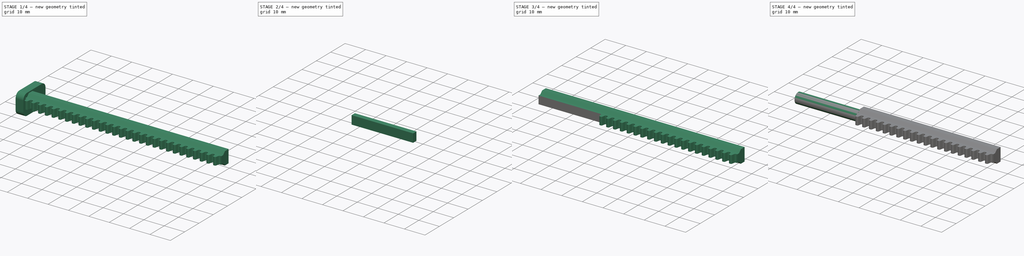
[diagram: build sequence overview — one tinted view per stage of 4, left to right]
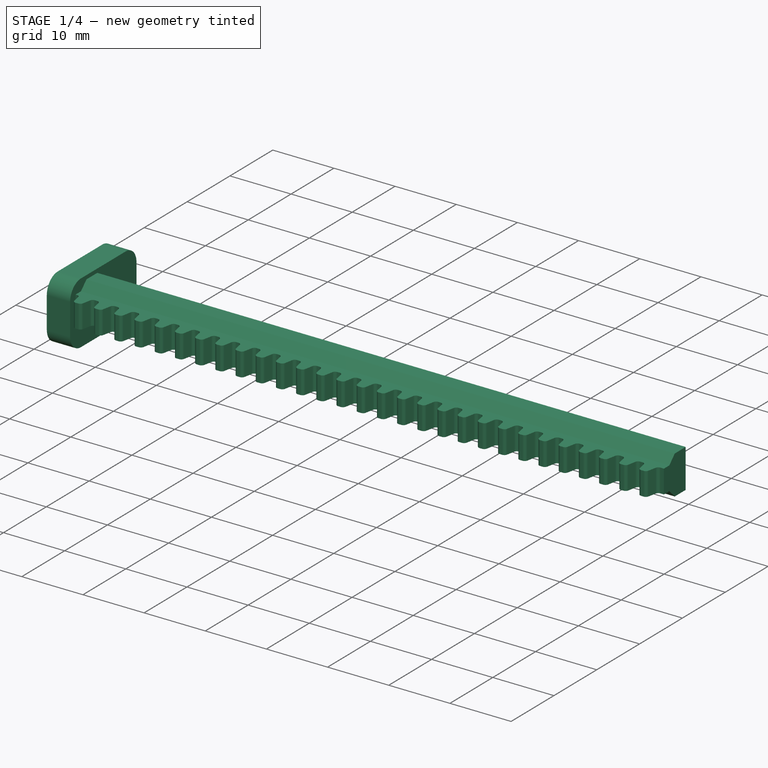
[diagram: stage 1 of 4 — iso view after this stage's code; geometry added in this stage tinted green]
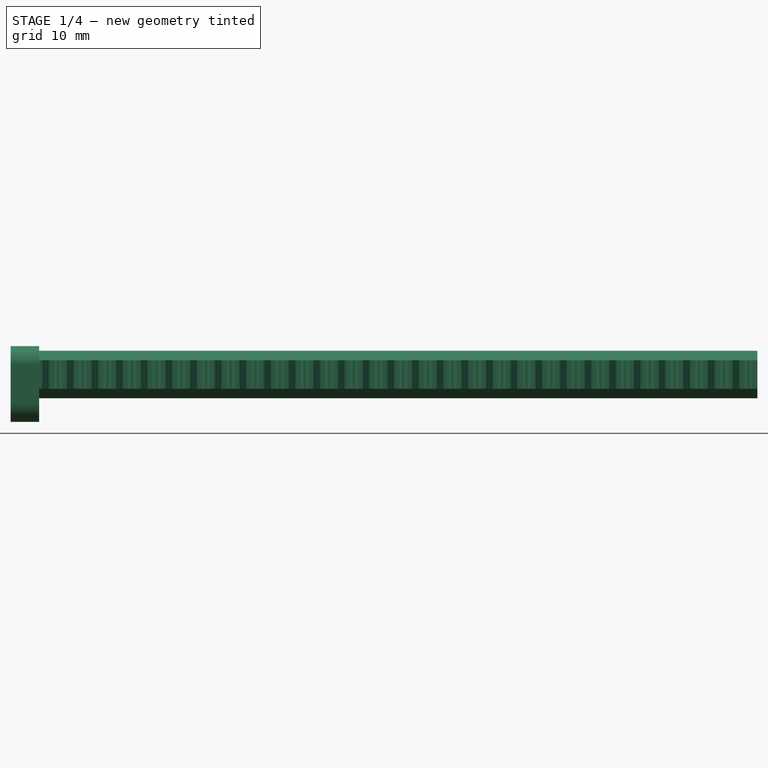
[diagram: stage 1 of 4 — front view after this stage's code; geometry added in this stage tinted green]
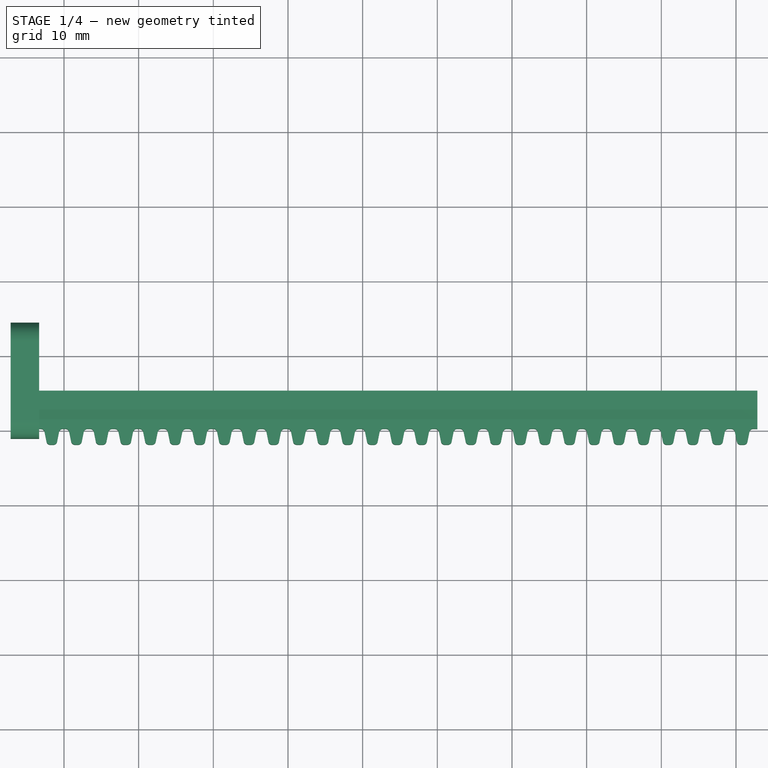
[diagram: stage 1 of 4 — top view after this stage's code; geometry added in this stage tinted green]
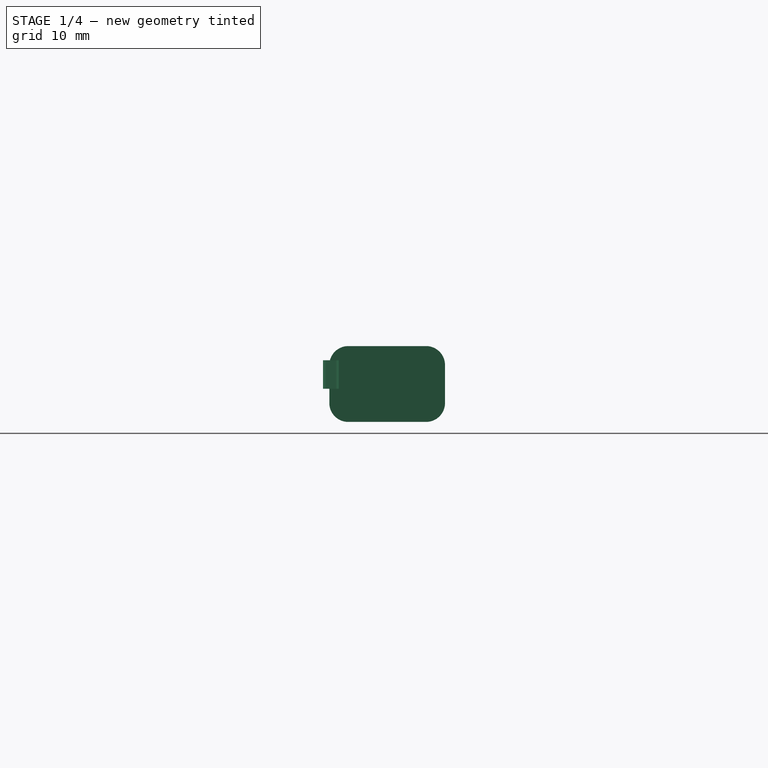
[diagram: stage 1 of 4 — right view after this stage's code; geometry added in this stage tinted green]
FCSTD DOCUMENT  (FreeCAD 0.19R24267 +99 (Git))
Label: Modified rod
License: All rights reserved
LicenseURL: http://en.wikipedia.org/wiki/All_rights_reserved
objects: PartDesign::Plane×4, PartDesign::Body×4, Part::FeaturePython×4, PartDesign::FeatureBase×3, PartDesign::ShapeBinder×3, Sketcher::SketchObject×2, Part::Face×2, App::DocumentObjectGroup×2, Part::Extrusion×2, Part::Feature×1, Part::Cut×1
note: 26 computed .brp shape members not serialized (recipe doc carries the construction recipe); baked Part::Feature solids carry a one-line shape summary decoded from their .brp

FEATURE [Part::Feature] Part__Feature  label="Rack, Servo to Linear_100mm_MINI"
  shape: bbox 100 x 16.34 x 10.16 mm, 251 faces (baked)
FEATURE [PartDesign::FeatureBase] BaseFeature
  BaseFeature = -> Part__Feature
FEATURE [PartDesign::Plane] DatumPlane
  Length = 62.8469
  MapMode = 5
  Placement = pos=(-73.33,0,0) rot=(0.57735,0.57735,0.57735;2.0944rad)
  ResizeMode = 0
  Support = -> [BaseFeature]
  Width = 60.2558
FEATURE [Sketcher::SketchObject] Sketch
  FullyConstrained = false
  MapMode = 5
  Placement = pos=(-73.33,0,0) rot=(0.57735,0.57735,0.57735;2.0944rad)
  Support = -> [DatumPlane]
  sketch-geometry (4):
    g0: LineSegment StartX=1.11304 StartY=11.164 StartZ=0 EndX=27.591 EndY=11.164 EndZ=0
    g1: LineSegment StartX=27.591 StartY=11.164 StartZ=0 EndX=27.591 EndY=-9.80515 EndZ=0
    g2: LineSegment StartX=27.591 StartY=-9.80515 StartZ=0 EndX=1.11304 EndY=-9.80515 EndZ=0
    g3: LineSegment StartX=1.11304 StartY=-9.80515 StartZ=0 EndX=1.11304 EndY=11.164 EndZ=0
  constraints (8):
    c: Coincident(g0,g1)
    c: Coincident(g1,g2)
    c: Coincident(g2,g3)
    c: Coincident(g3,g0)
    c: Horizontal(g0)
    c: Horizontal(g2)
    c: Vertical(g1)
    c: Vertical(g3)
FEATURE [Part::Face] Face
  FaceMakerClass = Part::FaceMakerBullseye
  Sources = -> [Sketch]
FEATURE [PartDesign::ShapeBinder] CopySlice_child0
  TraceSupport = false
FEATURE [PartDesign::Plane] DatumPlane001
  Length = 62.8469
  MapMode = 5
  Placement = pos=(-73.33,0,0) rot=(0.57735,-0.57735,-0.57735;2.0944rad)
  ResizeMode = 0
  Support = -> [CopySlice_child0]
  Width = 60.2558
FEATURE [PartDesign::ShapeBinder] CopySlice_child0001
  TraceSupport = false
FEATURE [PartDesign::Plane] DatumPlane002
  Length = 62.8469
  MapMode = 5
  Placement = pos=(-73.33,0,0) rot=(0.57735,-0.57735,-0.57735;2.0944rad)
  ResizeMode = 0
  Support = -> [CopySlice_child0001]
  Width = 60.2558
FEATURE [PartDesign::Body] Body
  BaseFeature = -> Part__Feature
  Group = -> [BaseFeature,DatumPlane,Sketch,DatumPlane001,CopySlice_child0,DatumPlane002,CopySlice_child0001]
  Origin = -> Origin
  Tip = -> BaseFeature
FEATURE [Part::FeaturePython] Slice  # WARN: FeaturePython — macro-defined, semantics opaque (R4)
  Base = -> Body
  Mode = 1
  Tolerance = 0
  Tools = -> [Face]
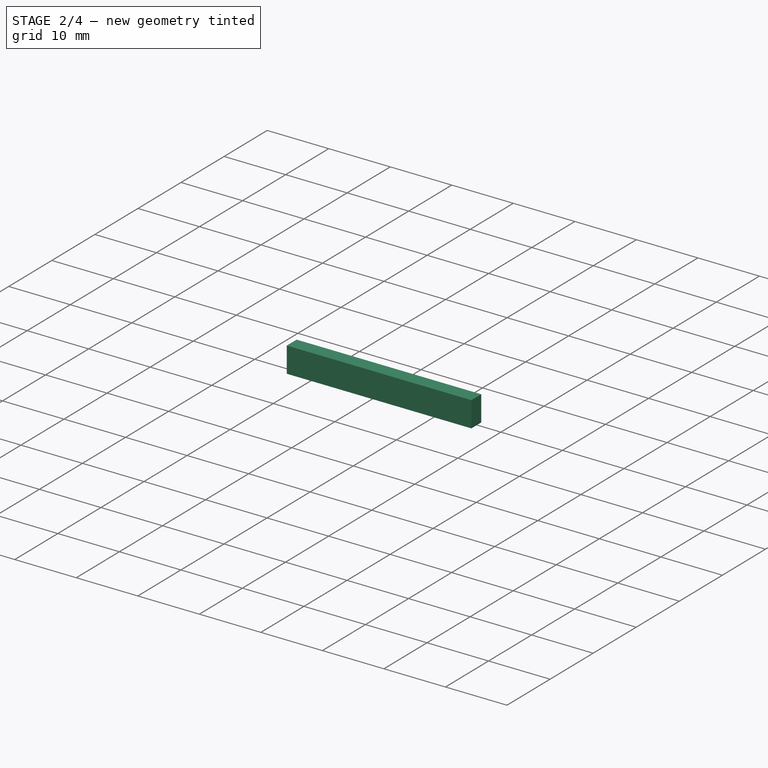
[diagram: stage 2 of 4 — iso view after this stage's code; geometry added in this stage tinted green]
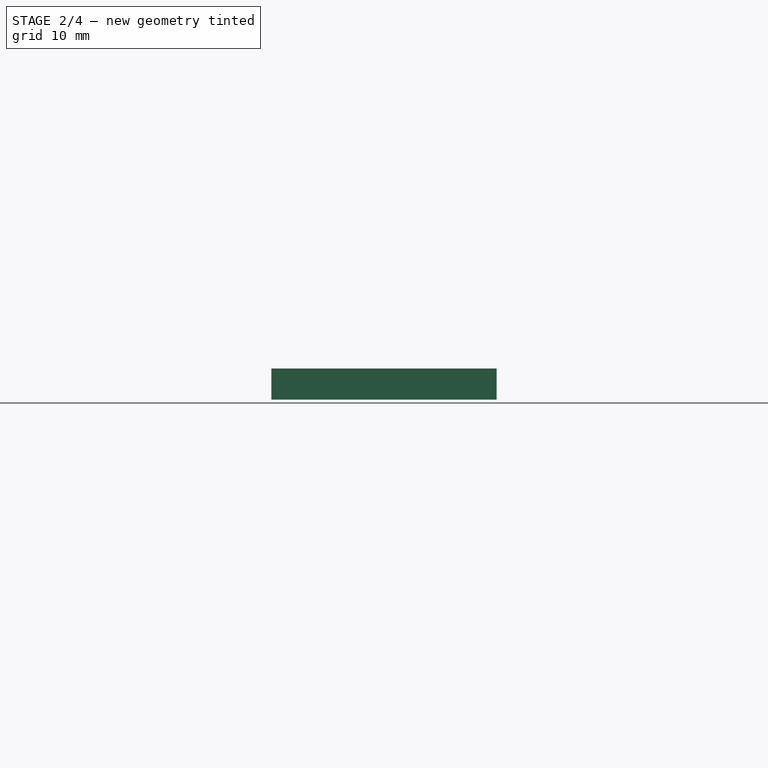
[diagram: stage 2 of 4 — front view after this stage's code; geometry added in this stage tinted green]
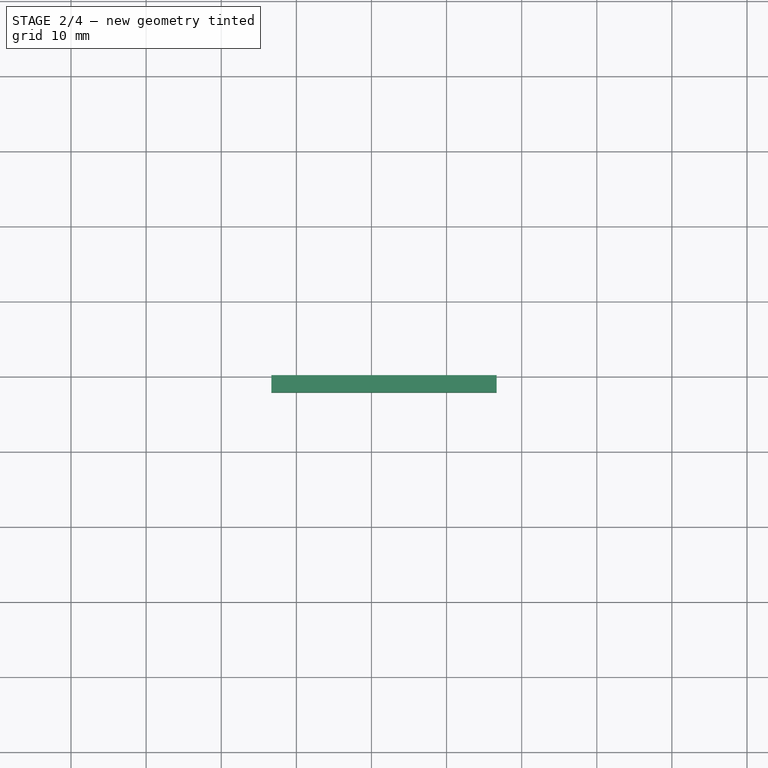
[diagram: stage 2 of 4 — top view after this stage's code; geometry added in this stage tinted green]
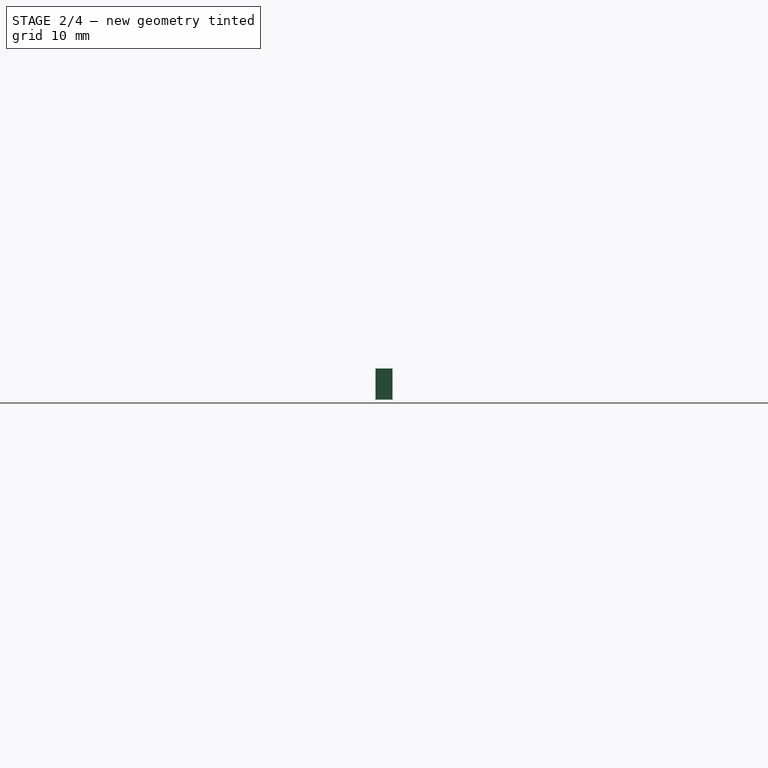
[diagram: stage 2 of 4 — right view after this stage's code; geometry added in this stage tinted green]
FEATURE [Part::FeaturePython] Slice_child0  label="Slice.0"  # WARN: FeaturePython — macro-defined, semantics opaque (R4)
  Base = -> Slice
  FilterType = 1
  Invert = false
  OverrideMaxVal = 0
  WindowFrom = 80
  WindowTo = 100
  items = 0
FEATURE [App::DocumentObjectGroup] GrExplode_Slice  label="Exploded Slice"
  Group = -> [Slice_child0]
FEATURE [PartDesign::FeatureBase] BaseFeature001
  BaseFeature = -> Slice_child0
FEATURE [PartDesign::Plane] DatumPlane003
  Length = 60
  MapMode = 5
  Placement = pos=(-73.33,0,0) rot=(0.57735,-0.57735,-0.57735;2.0944rad)
  ResizeMode = 0
  Support = -> [BaseFeature001]
  Width = 60
FEATURE [Sketcher::SketchObject] Sketch001
  FullyConstrained = false
  MapMode = 5
  Placement = pos=(-73.33,0,0) rot=(0.57735,-0.57735,-0.57735;2.0944rad)
  Support = -> [DatumPlane003]
  sketch-geometry (4):
    g0: LineSegment StartX=-10.1839 StartY=4.0095 StartZ=0 EndX=-7.90569 EndY=4.0095 EndZ=0
    g1: LineSegment StartX=-7.90569 StartY=4.0095 StartZ=0 EndX=-7.90569 EndY=-0.134405 EndZ=0
    g2: LineSegment StartX=-7.90569 StartY=-0.134405 StartZ=0 EndX=-10.1839 EndY=-0.134405 EndZ=0
    g3: LineSegment StartX=-10.1839 StartY=-0.134405 StartZ=0 EndX=-10.1839 EndY=4.0095 EndZ=0
  constraints (8):
    c: Coincident(g0,g1)
    c: Coincident(g1,g2)
    c: Coincident(g2,g3)
    c: Coincident(g3,g0)
    c: Horizontal(g0)
    c: Horizontal(g2)
    c: Vertical(g1)
    c: Vertical(g3)
FEATURE [PartDesign::Body] Body001
  BaseFeature = -> Slice_child0
  Group = -> [BaseFeature001,DatumPlane003,Sketch001]
  Origin = -> Origin001
  Tip = -> BaseFeature001
FEATURE [Part::Extrusion] Extrude
  Base = -> Sketch001
  Dir = (-1,0,0)
  DirMode = 2
  FaceMakerClass = Part::FaceMakerBullseye
  LengthFwd = 30
  LengthRev = 0
  Reversed = true
  Solid = true
  Symmetric = false
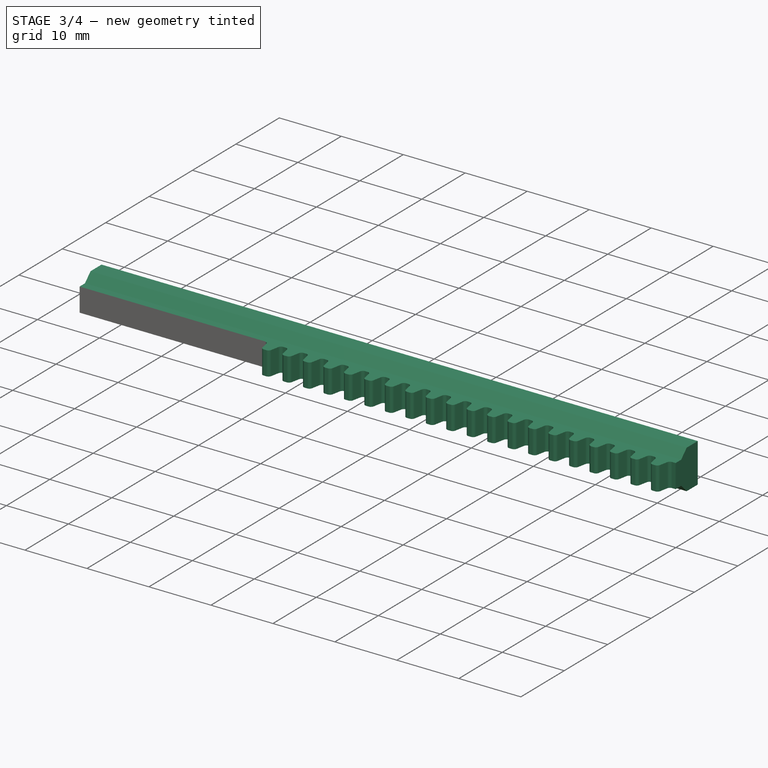
[diagram: stage 3 of 4 — iso view after this stage's code; geometry added in this stage tinted green]
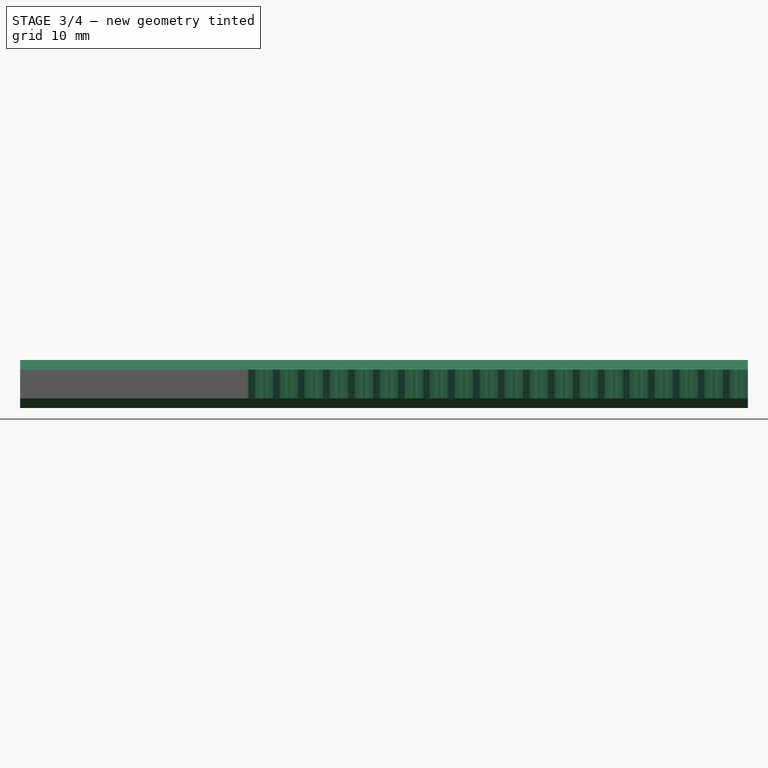
[diagram: stage 3 of 4 — front view after this stage's code; geometry added in this stage tinted green]
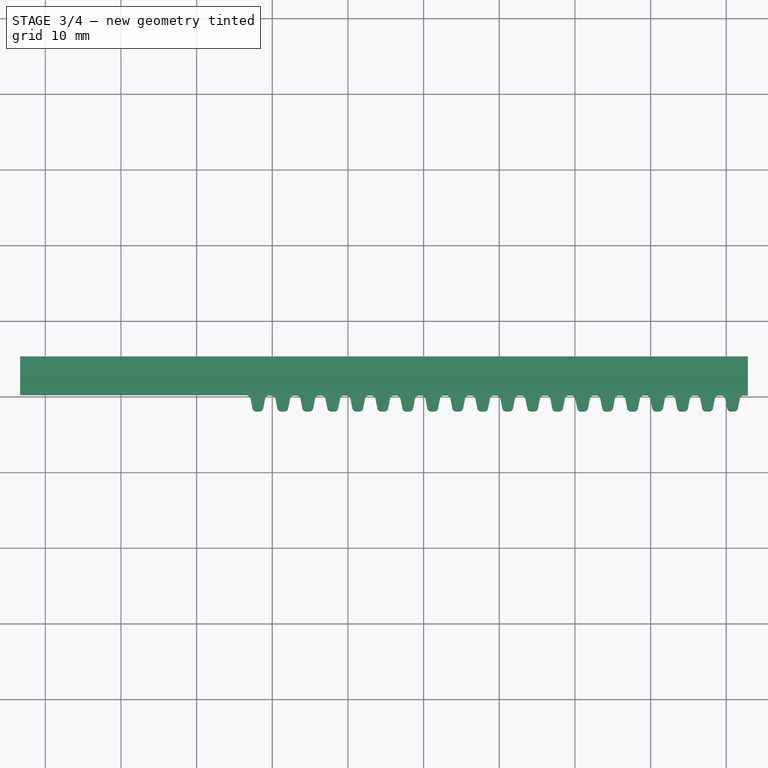
[diagram: stage 3 of 4 — top view after this stage's code; geometry added in this stage tinted green]
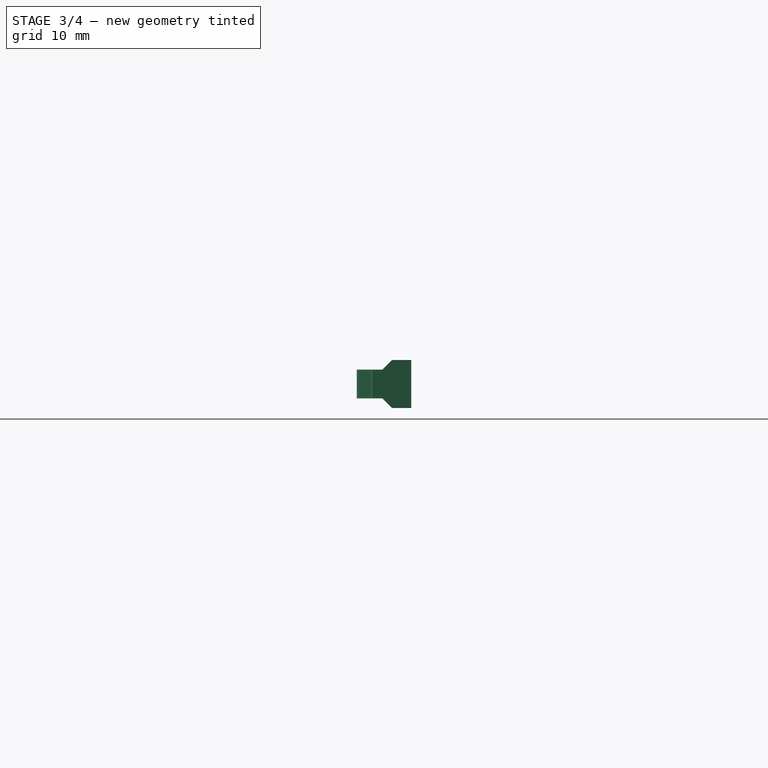
[diagram: stage 3 of 4 — right view after this stage's code; geometry added in this stage tinted green]
FEATURE [Part::Cut] Cut
  Base = -> Body001
  Tool = -> Extrude
FEATURE [PartDesign::FeatureBase] BaseFeature002
  BaseFeature = -> Cut
FEATURE [PartDesign::ShapeBinder] CopyExtrude001
  Placement = pos=(30,0,0) rot=(0,0,1;0rad)
  TraceSupport = false
FEATURE [PartDesign::Body] Body003
  Group = -> [CopyExtrude001]
  Origin = -> Origin003
FEATURE [Part::Face] Face001
  FaceMakerClass = Part::FaceMakerBullseye
FEATURE [Part::FeaturePython] Slice001  # WARN: FeaturePython — macro-defined, semantics opaque (R4)
  Base = -> Body002
  Mode = 1
  Tolerance = 0
  Tools = -> [Face001]
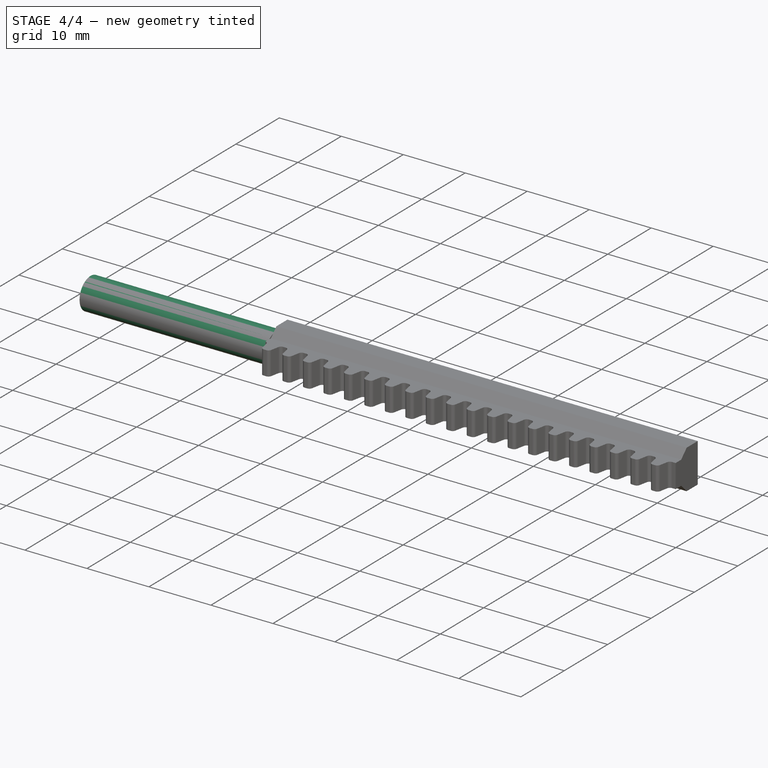
[diagram: stage 4 of 4 — iso view after this stage's code; geometry added in this stage tinted green]
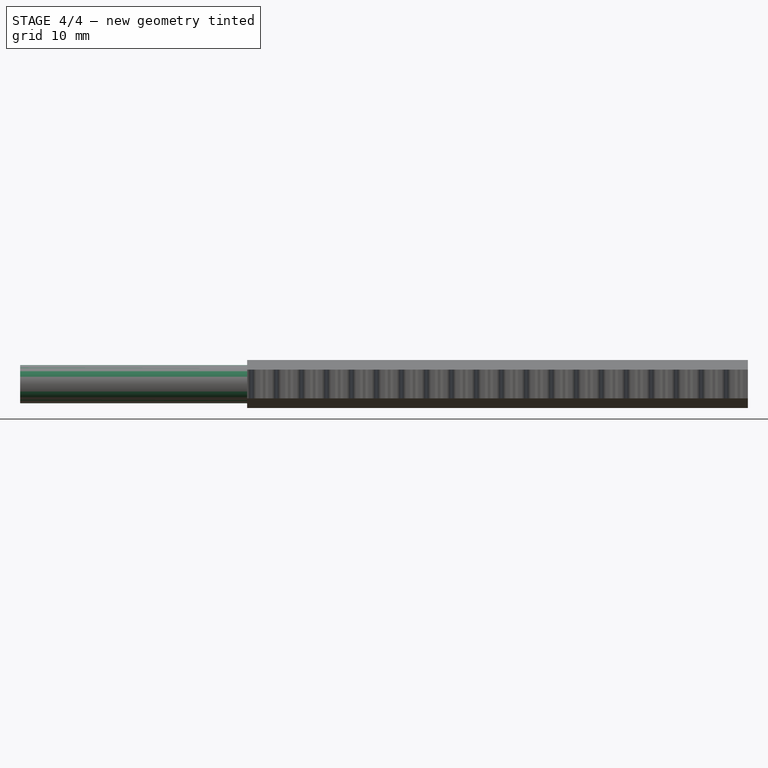
[diagram: stage 4 of 4 — front view after this stage's code; geometry added in this stage tinted green]
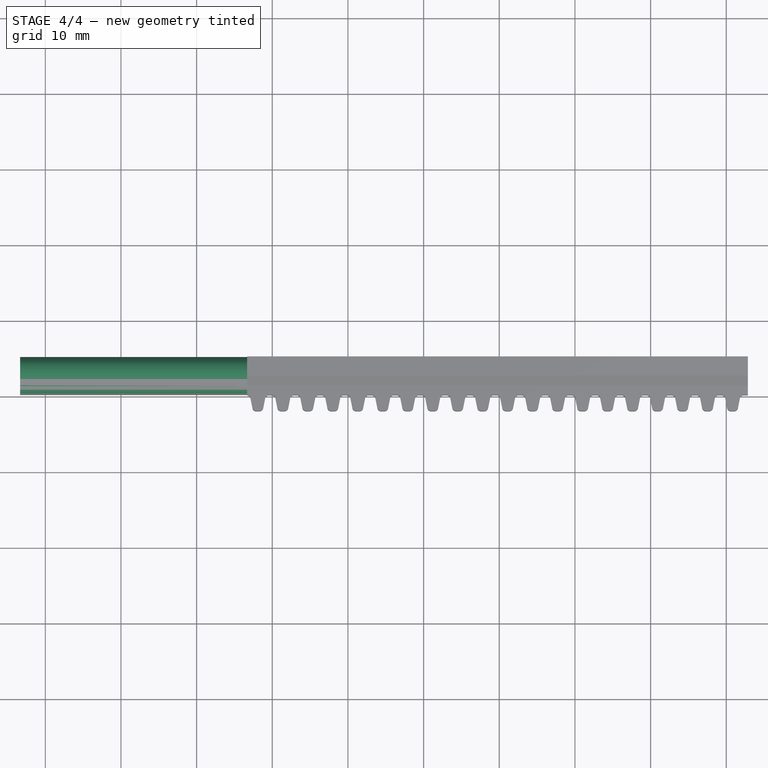
[diagram: stage 4 of 4 — top view after this stage's code; geometry added in this stage tinted green]
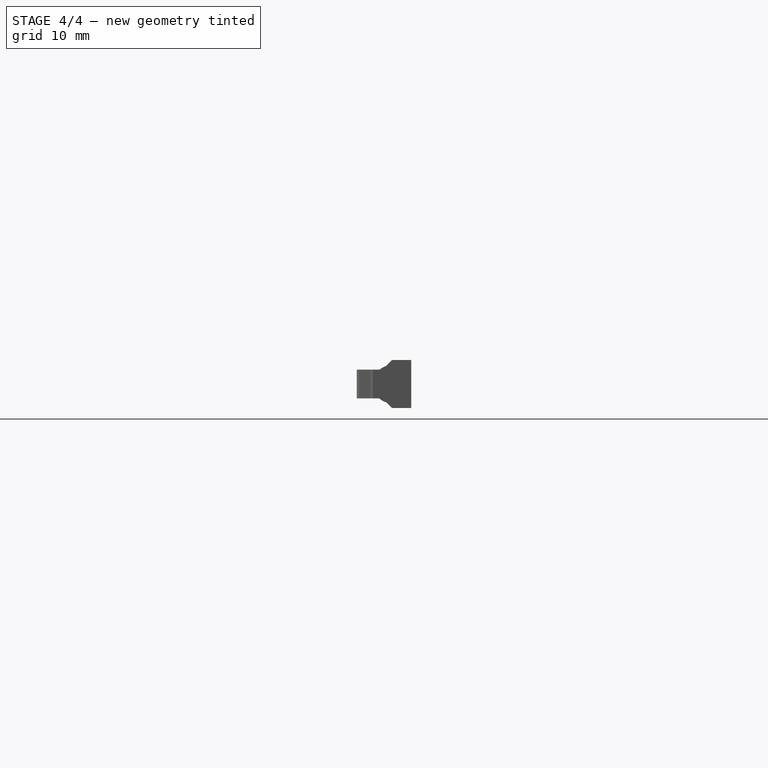
[diagram: stage 4 of 4 — right view after this stage's code; geometry added in this stage tinted green]
FEATURE [PartDesign::Body] Body002
  BaseFeature = -> Cut
  Group = -> [BaseFeature002]
  Origin = -> Origin002
  Tip = -> BaseFeature002
FEATURE [Part::Extrusion] Extrude001
  Dir = (-1,0,0)
  DirMode = 2
  FaceMakerClass = Part::FaceMakerBullseye
  LengthFwd = 30
  LengthRev = 0
  Reversed = true
  Solid = true
  Symmetric = false
FEATURE [Part::FeaturePython] Slice001_child1  label="Slice001.1"  # WARN: FeaturePython — macro-defined, semantics opaque (R4)
  Base = -> Slice001
  FilterType = 1
  Invert = false
  OverrideMaxVal = 0
  WindowFrom = 80
  WindowTo = 100
  items = 1
FEATURE [App::DocumentObjectGroup] GrExplode_Slice001  label="Exploded Slice001"
  Group = -> [Slice001_child1]
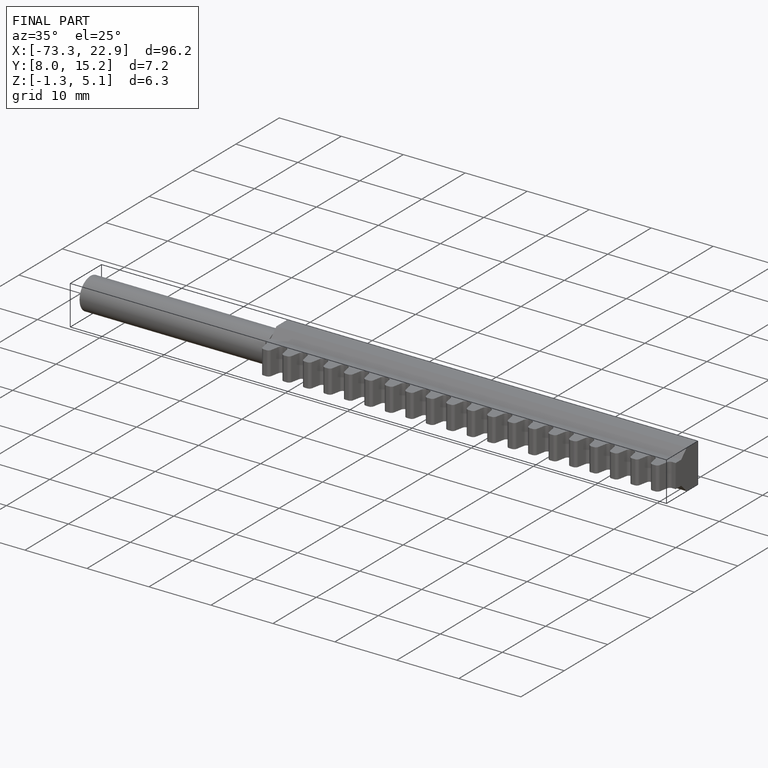
[diagram: finished part — iso view with bounding-box wireframe]
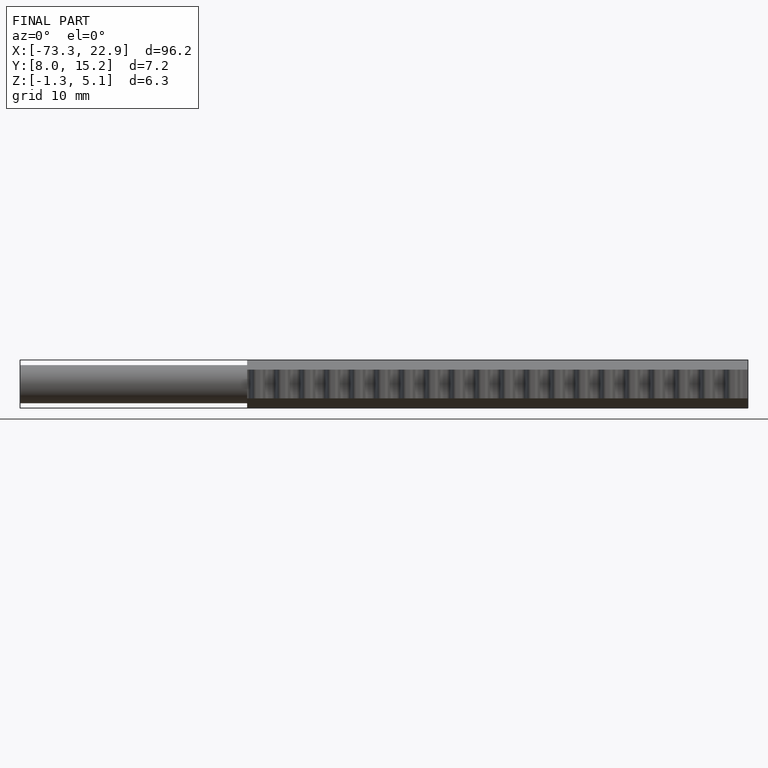
[diagram: finished part — front view with bounding-box wireframe]
